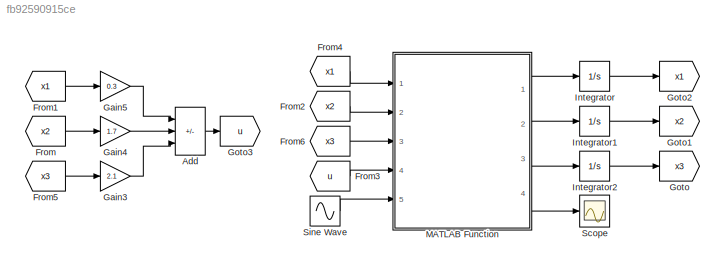
MODEL slx_fb92590915ce
KIND model
CONFIG AbsTol = auto
CONFIG EnableMultiTasking = off
CONFIG FixedStep = auto
CONFIG MaxStep = auto
CONFIG MinStep = auto
CONFIG RelTol = 1e-3
CONFIG SampleTimeConstraint = Unconstrained
CONFIG SolverName = VariableStepAuto
CONFIG StartTime = 0.0
CONFIG StopTime = 2*pi
BLOCK [Sum] Add
  IconShape = rectangular
  Inputs = ---
  Ports = [3, 1]
BLOCK [From] From
  GotoTag = x2
BLOCK [From] From1
  GotoTag = x1
BLOCK [From] From2
  GotoTag = x2
BLOCK [From] From3
  GotoTag = u
BLOCK [From] From4
  GotoTag = x1
BLOCK [From] From5
  GotoTag = x3
BLOCK [From] From6
  GotoTag = x3
BLOCK [Gain] Gain3
  Gain = 2.1
BLOCK [Gain] Gain4
  Gain = 1.7
BLOCK [Gain] Gain5
  Gain = 0.3
BLOCK [Goto] Goto
  GotoTag = x3
BLOCK [Goto] Goto1
  GotoTag = x2
BLOCK [Goto] Goto2
  GotoTag = x1
BLOCK [Goto] Goto3
  GotoTag = u
BLOCK [Integrator] Integrator
  Ports = [1, 1]
BLOCK [Integrator] Integrator1
  Ports = [1, 1]
BLOCK [Integrator] Integrator2
  Ports = [1, 1]
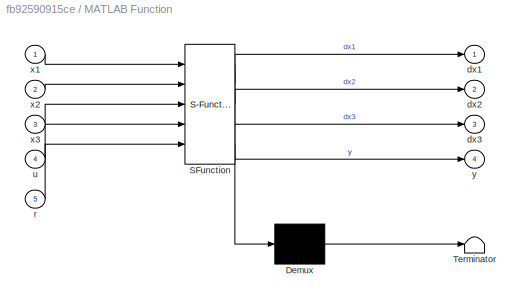
BLOCK [SubSystem] MATLAB Function
  ErrorFcn = Stateflow.Translate.translate
  PermitHierarchicalResolution = ExplicitOnly
  Ports = [5, 4]
  RequestExecContextInheritance = off
  SFBlockType = MATLAB Function
  TreatAsAtomicUnit = on
BLOCK [Demux] MATLAB Function/ Demux 
  Outputs = 1
  Ports = [1, 1]
BLOCK [S-Function] MATLAB Function/ SFunction 
  EnableBusSupport = on
  FunctionName = sf_sfun
  PortCounts = [5 5]
  Ports = [5, 5]
  SFcnIsStateOwnerBlock = off
  SFunctionDeploymentMode = off
  Tag = Stateflow S-Function 2
BLOCK [Terminator] MATLAB Function/ Terminator 
BLOCK [Outport] MATLAB Function/dx1
BLOCK [Outport] MATLAB Function/dx2
  Port = 2
BLOCK [Outport] MATLAB Function/dx3
  Port = 3
BLOCK [Inport] MATLAB Function/r
  Port = 5
BLOCK [Inport] MATLAB Function/u
  Port = 4
BLOCK [Inport] MATLAB Function/x1
BLOCK [Inport] MATLAB Function/x2
  Port = 2
BLOCK [Inport] MATLAB Function/x3
  Port = 3
BLOCK [Outport] MATLAB Function/y
  Port = 4
BLOCK [Scope] Scope
  Floating = off
  NumInputPorts = 1
  Ports = [1]
  ScopeSpecificationString = Simulink.scopes.TimeScopeBlockCfg('CurrentConfiguration', extmgr.ConfigurationSet(extmgr.Configuration('Core','General UI',true),extmgr.Configuration('Core','Source UI',true),extmgr.Configuration('Sources','WiredSimulink',true),extmgr.Configuration('Visuals','Time Domain',true,'SerializedDisplays',{struct('MinYLimReal','-1.17369','MaxYLimReal','1.17109','YLabelReal','Output','MinYLimMag','0.00000'...<+1434ch>
BLOCK [Sin] Sine Wave
  Ports = [0, 1]
  SampleTime = 0
LINE Add:1 -> Goto3:1
LINE From1:1 -> Gain5:1
LINE From2:1 -> MATLAB Function:2
LINE From3:1 -> MATLAB Function:4
LINE From4:1 -> MATLAB Function:1
LINE From5:1 -> Gain3:1
LINE From6:1 -> MATLAB Function:3
LINE From:1 -> Gain4:1
LINE Gain3:1 -> Add:3
LINE Gain4:1 -> Add:2
LINE Gain5:1 -> Add:1
LINE Integrator1:1 -> Goto1:1
LINE Integrator2:1 -> Goto:1
LINE Integrator:1 -> Goto2:1
LINE MATLAB Function:1 -> Integrator:1
LINE MATLAB Function:2 -> Integrator1:1
LINE MATLAB Function:3 -> Integrator2:1
LINE MATLAB Function:4 -> Scope:1
LINE Sine Wave:1 -> MATLAB Function:5
CHART MATLAB Function states=1 transitions=1
  STATE_LABEL 'eML_blk_kernel()'
  STATE_LABEL 'SCRIPT:\nfunction [dx1,dx2,dx3,y] = Function(x1,x2,x3,u,r)\n\nA = [-2 -1;0 -3];\nB = [1;1];\nC = [1 3];\na = [A [0;0;];C 0];\nb = [B;0];\nx = [x1;x2;x3];\ndx = a*x+b*u-[0;0;1]*r;\ndx1 = dx(1);\ndx2 = dx(2);\ndx3 = dx(3);\ny = x1+3*x2;\n'
CHART  states=0 transitions=0
